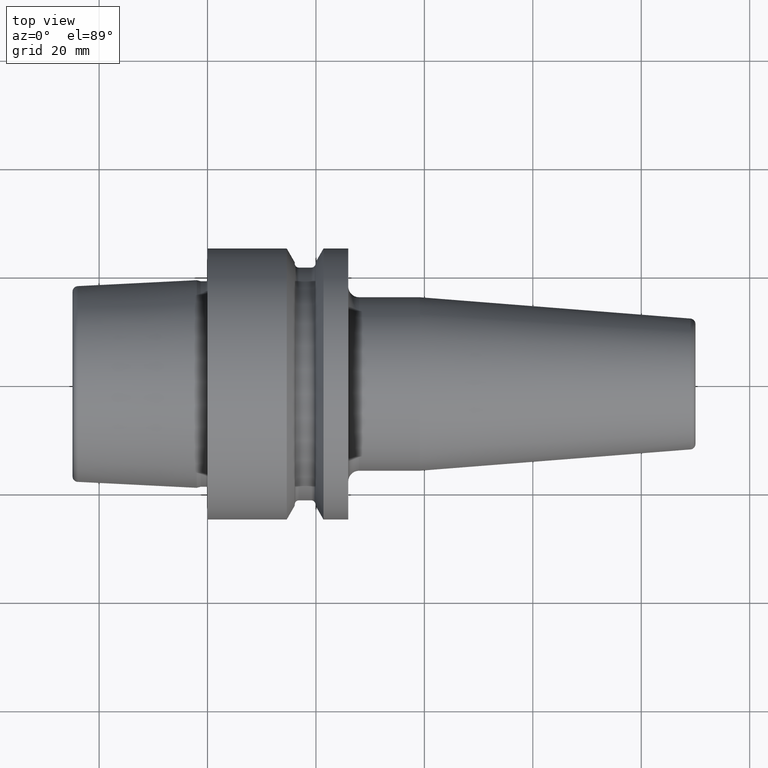
[diagram: clean part render]
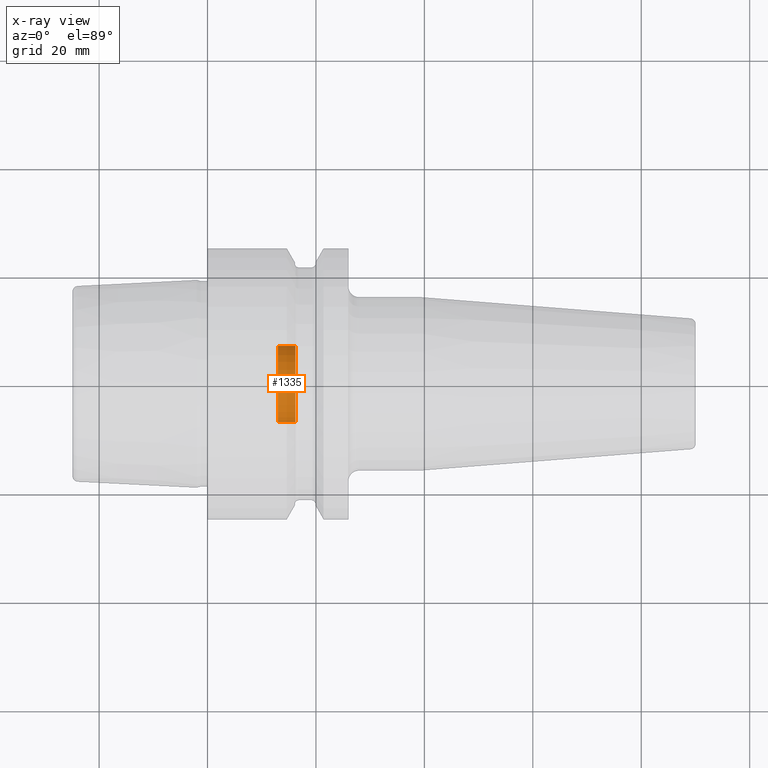
[diagram: x-ray — body ghosted, one internal face saturated and labeled with its STEP entity id]
A machine part, top view, then the same camera in x-ray: the body is ghosted and one INTERNAL B-rep face — a face not visible from any outside direction — is saturated and labeled: STEP entity #1335.
In plain terms, the highlighted cylindrical surface (partial cylindrical patch) has radius 7 mm, axis along (-1, 0, 0).
Its self-contained STEP definition (entity closure, byte-faithful):
#264=CARTESIAN_POINT('',(1.29625E1,0.E0,0.E0));
#265=DIRECTION('',(-1.E0,0.E0,0.E0));
#266=DIRECTION('',(0.E0,-1.E0,0.E0));
#267=AXIS2_PLACEMENT_3D('',#264,#265,#266);
#282=DIRECTION('',(-1.E0,0.E0,0.E0));
#283=VECTOR('',#282,3.2375E0);
#284=CARTESIAN_POINT('',(1.62E1,7.E0,0.E0));
#285=LINE('',#284,#283);
#286=DIRECTION('',(-1.E0,0.E0,0.E0));
#287=VECTOR('',#286,3.2375E0);
#288=CARTESIAN_POINT('',(1.62E1,-7.E0,0.E0));
#289=LINE('',#288,#287);
#300=CARTESIAN_POINT('',(1.62E1,0.E0,0.E0));
#301=DIRECTION('',(-1.E0,0.E0,0.E0));
#302=DIRECTION('',(0.E0,-1.E0,0.E0));
#303=AXIS2_PLACEMENT_3D('',#300,#301,#302);
#848=CARTESIAN_POINT('',(1.62E1,7.E0,0.E0));
#849=CARTESIAN_POINT('',(1.29625E1,7.E0,0.E0));
#850=VERTEX_POINT('',#848);
#851=VERTEX_POINT('',#849);
#852=CARTESIAN_POINT('',(1.62E1,-7.E0,0.E0));
#853=CARTESIAN_POINT('',(1.29625E1,-7.E0,0.E0));
#854=VERTEX_POINT('',#852);
#855=VERTEX_POINT('',#853);
#1321=CARTESIAN_POINT('',(2.329132554985E1,0.E0,0.E0));
#1322=DIRECTION('',(-1.E0,0.E0,0.E0));
#1323=DIRECTION('',(0.E0,1.E0,0.E0));
#1324=AXIS2_PLACEMENT_3D('',#1321,#1322,#1323);
#1325=CYLINDRICAL_SURFACE('',#1324,7.E0);
#1327=ORIENTED_EDGE('',*,*,#1326,.T.);
#1328=ORIENTED_EDGE('',*,*,#1311,.F.);
#1330=ORIENTED_EDGE('',*,*,#1329,.F.);
#1332=ORIENTED_EDGE('',*,*,#1331,.T.);
#1333=EDGE_LOOP('',(#1327,#1328,#1330,#1332));
#1334=FACE_OUTER_BOUND('',#1333,.F.);
#1335=ADVANCED_FACE('',(#1334),#1325,.F.);
#268=CIRCLE('',#267,7.E0);
#304=CIRCLE('',#303,7.E0);
#1311=EDGE_CURVE('',#855,#851,#268,.T.);
#1326=EDGE_CURVE('',#850,#851,#285,.T.);
#1329=EDGE_CURVE('',#854,#855,#289,.T.);
#1331=EDGE_CURVE('',#854,#850,#304,.T.);